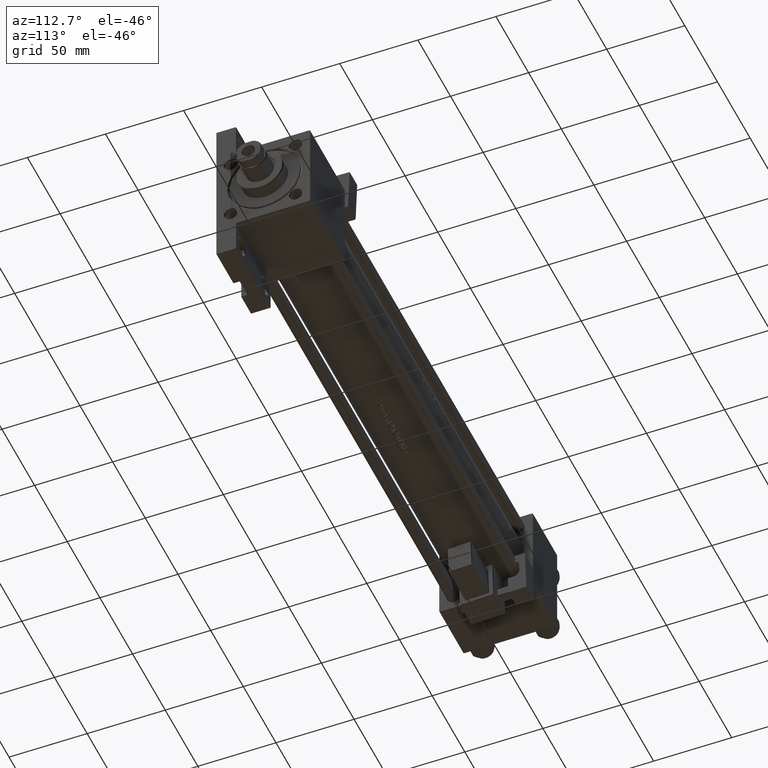
[diagram: clean part render]
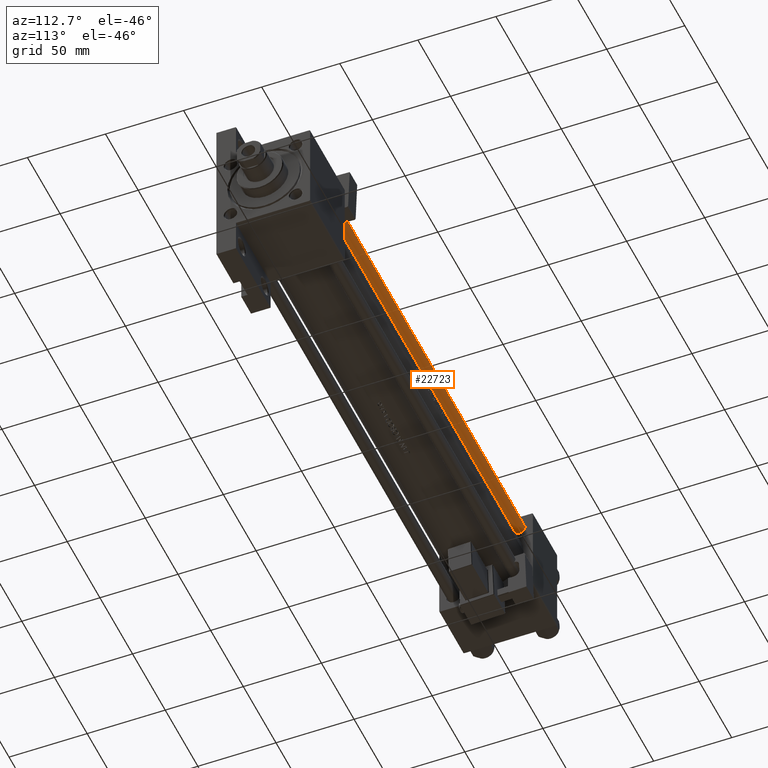
[diagram: same view with one face highlighted and labeled with its STEP entity id]
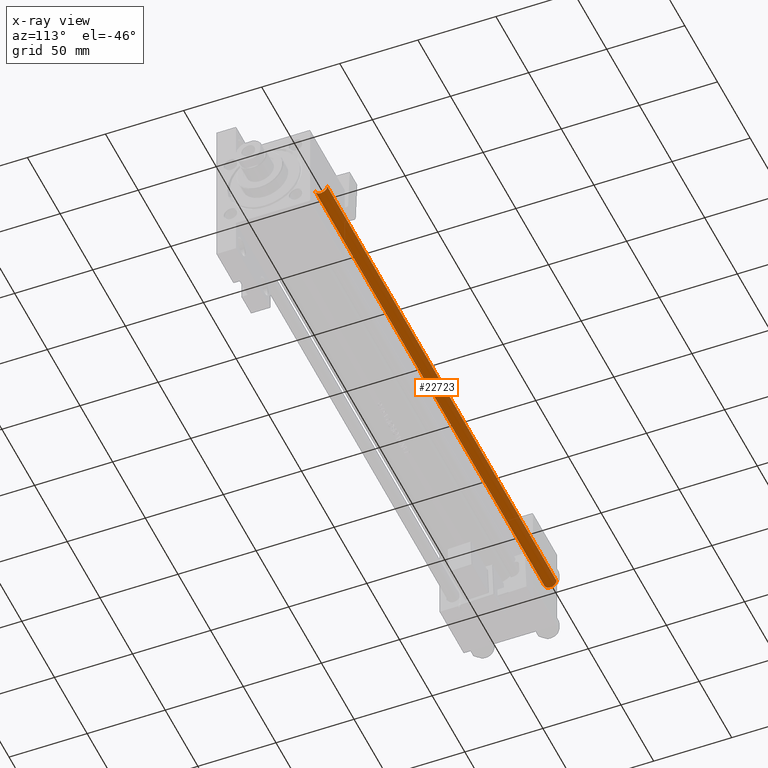
[diagram: x-ray of the same camera — body ghosted, the highlighted face saturated]
A machine part, auxiliary view. The second image highlights one B-rep face of the part: STEP entity #22723.
The next image is the same camera in x-ray: the body ghosted, the highlighted face saturated — about 1% of this face is hidden behind the body in this view.
In plain terms, the highlighted cylindrical surface (edge-blend (fillet) strip) has radius 4 mm, axis along (1, -0, 0).
Its self-contained STEP definition (entity closure, byte-faithful):
#342 = DIRECTION ( 'NONE',  ( -0.000000000000000000, -0.000000000000000000, -1.000000000000000000 ) ) ;
#1314 = CARTESIAN_POINT ( 'NONE',  ( 4.000000000000000000, 4.898587196589412829E-16, 351.5000000000000000 ) ) ;
#1470 = VECTOR ( 'NONE', #342, 1000.000000000000000 ) ;
#1597 = ORIENTED_EDGE ( 'NONE', *, *, #18645, .T. ) ;
#1689 = DIRECTION ( 'NONE',  ( -0.000000000000000000, -0.000000000000000000, -1.000000000000000000 ) ) ;
#1938 = EDGE_CURVE ( 'NONE', #10516, #50253, #41240, .T. ) ;
#2619 = VERTEX_POINT ( 'NONE', #42510 ) ;
#3089 = CARTESIAN_POINT ( 'NONE',  ( 0.000000000000000000, 0.000000000000000000, 0.5000000000000004441 ) ) ;
#3754 = EDGE_LOOP ( 'NONE', ( #8539, #1597, #4840, #40682 ) ) ;
#3790 = EDGE_CURVE ( 'NONE', #15374, #2619, #15752, .T. ) ;
#4359 = DIRECTION ( 'NONE',  ( 1.000000000000000000, 0.000000000000000000, 0.000000000000000000 ) ) ;
#4840 = ORIENTED_EDGE ( 'NONE', *, *, #3790, .T. ) ;
#7940 = DIRECTION ( 'NONE',  ( 1.000000000000000000, 0.000000000000000000, 0.000000000000000000 ) ) ;
#8539 = ORIENTED_EDGE ( 'NONE', *, *, #1938, .T. ) ;
#9391 = CARTESIAN_POINT ( 'NONE',  ( 0.000000000000000000, 0.000000000000000000, 352.0000000000000000 ) ) ;
#10516 = VERTEX_POINT ( 'NONE', #42845 ) ;
#11789 = VECTOR ( 'NONE', #48219, 1000.000000000000000 ) ;
#12463 = FACE_OUTER_BOUND ( 'NONE', #3754, .T. ) ;
#15374 = VERTEX_POINT ( 'NONE', #18604 ) ;
#15752 = CIRCLE ( 'NONE', #26484, 4.000000000000000000 ) ;
#18604 = CARTESIAN_POINT ( 'NONE',  ( 4.000000000000000000, 4.898587196589412829E-16, 0.5000000000000004441 ) ) ;
#18645 = EDGE_CURVE ( 'NONE', #50253, #15374, #50858, .T. ) ;
#22723 = ADVANCED_FACE ( 'NONE', ( #12463 ), #40613, .T. ) ;
#25000 = CARTESIAN_POINT ( 'NONE',  ( -4.000000000000000000, 0.000000000000000000, 352.0000000000000000 ) ) ;
#25734 = EDGE_CURVE ( 'NONE', #10516, #2619, #40767, .T. ) ;
#26484 = AXIS2_PLACEMENT_3D ( 'NONE', #3089, #35514, #7940 ) ;
#28307 = DIRECTION ( 'NONE',  ( 0.000000000000000000, 0.000000000000000000, -1.000000000000000000 ) ) ;
#35514 = DIRECTION ( 'NONE',  ( -0.000000000000000000, -0.000000000000000000, 1.000000000000000000 ) ) ;
#36572 = CARTESIAN_POINT ( 'NONE',  ( 0.000000000000000000, 0.000000000000000000, 351.5000000000000000 ) ) ;
#38765 = AXIS2_PLACEMENT_3D ( 'NONE', #36572, #28307, #4359 ) ;
#40103 = DIRECTION ( 'NONE',  ( -1.000000000000000000, 0.000000000000000000, 0.000000000000000000 ) ) ;
#40613 = CYLINDRICAL_SURFACE ( 'NONE', #47902, 4.000000000000000000 ) ;
#40682 = ORIENTED_EDGE ( 'NONE', *, *, #25734, .F. ) ;
#40767 = LINE ( 'NONE', #25000, #11789 ) ;
#41240 = CIRCLE ( 'NONE', #38765, 4.000000000000000000 ) ;
#42510 = CARTESIAN_POINT ( 'NONE',  ( -4.000000000000000000, 0.000000000000000000, 0.5000000000000004441 ) ) ;
#42845 = CARTESIAN_POINT ( 'NONE',  ( -4.000000000000000000, 0.000000000000000000, 351.5000000000000000 ) ) ;
#46986 = CARTESIAN_POINT ( 'NONE',  ( 4.000000000000000000, 4.898587196589412829E-16, 352.0000000000000000 ) ) ;
#47902 = AXIS2_PLACEMENT_3D ( 'NONE', #9391, #1689, #40103 ) ;
#48219 = DIRECTION ( 'NONE',  ( -0.000000000000000000, -0.000000000000000000, -1.000000000000000000 ) ) ;
#50253 = VERTEX_POINT ( 'NONE', #1314 ) ;
#50858 = LINE ( 'NONE', #46986, #1470 ) ;